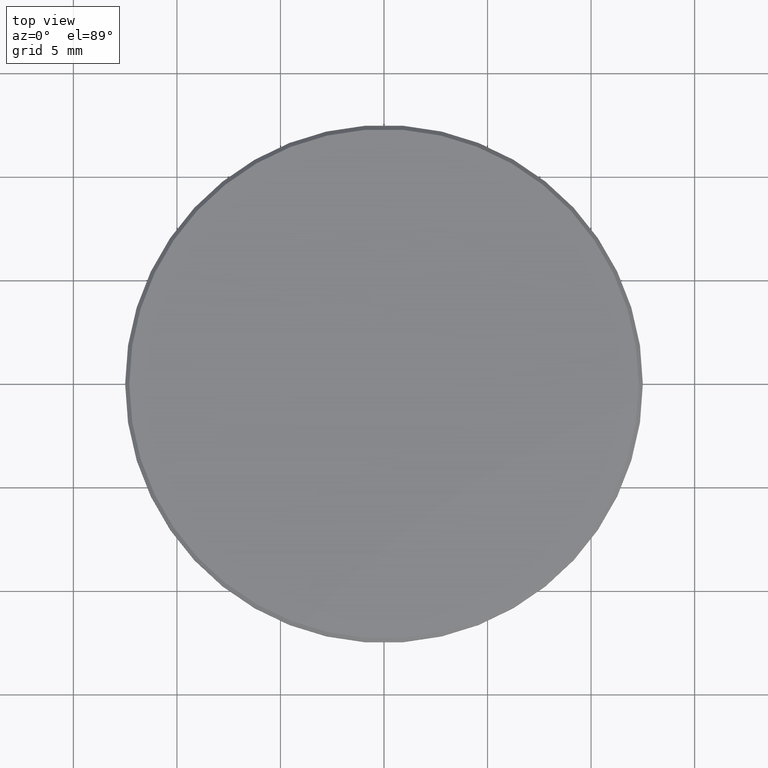
[diagram: clean part render]
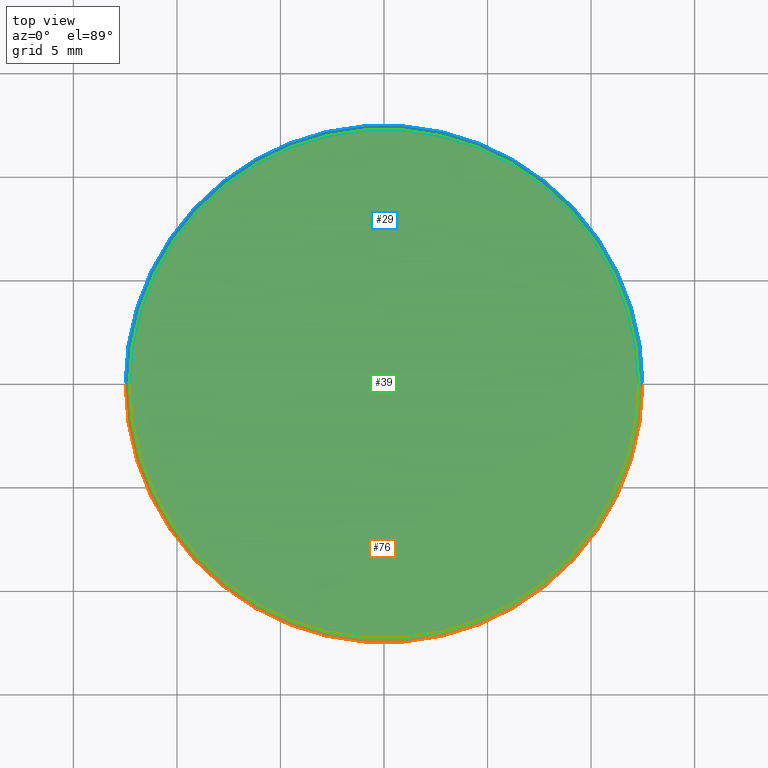
[diagram: same view with three faces highlighted in distinct colors, each labeled with its STEP entity id]
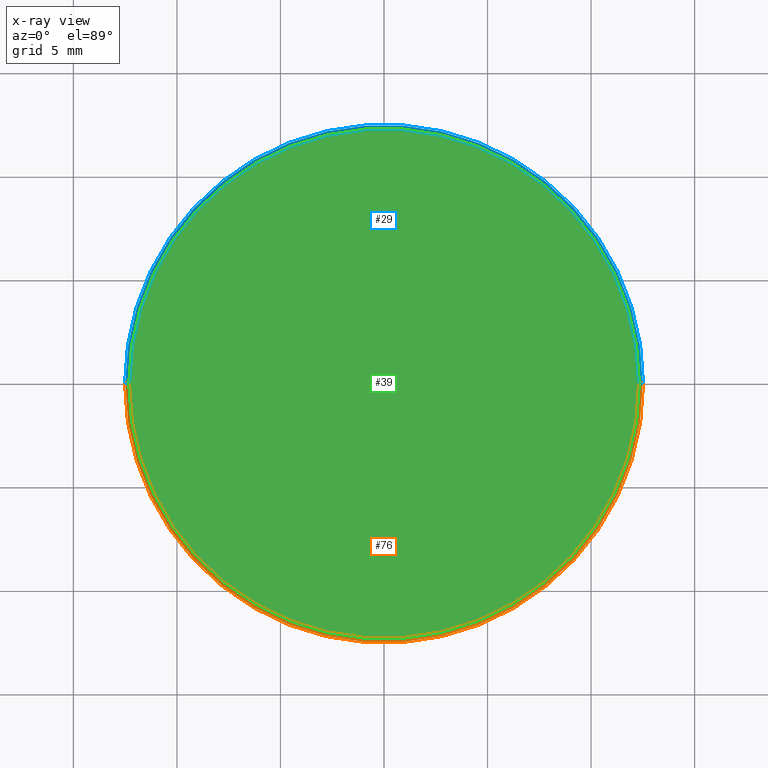
[diagram: x-ray of the same camera — body ghosted, the three highlighted faces saturated]
A machine part, top view with three faces highlighted in distinct colors.
The next image is the same camera in x-ray (body ghosted, the three faces saturated) — at least one of them is partly hidden behind the body in this view.
Their STEP definitions:

[orange] entity #76 — the highlighted conical surface has half-angle 45 deg.
#1 = FACE_OUTER_BOUND ( 'NONE', #153, .T. ) ;
#2 = ORIENTED_EDGE ( 'NONE', *, *, #102, .F. ) ;
#21 = LINE ( 'NONE', #222, #90 ) ;
#27 = CARTESIAN_POINT ( 'NONE',  ( 12.29999999999999893, 1.506315562951244216E-15, 1.000000000000000000 ) ) ;
#34 = AXIS2_PLACEMENT_3D ( 'NONE', #137, #84, #149 ) ;
#36 = CIRCLE ( 'NONE', #73, 12.29999999999999893 ) ;
#40 = VERTEX_POINT ( 'NONE', #138 ) ;
#49 = CARTESIAN_POINT ( 'NONE',  ( 0.000000000000000000, 0.000000000000000000, 0.8000000000000029310 ) ) ;
#50 = EDGE_CURVE ( 'NONE', #191, #105, #21, .T. ) ;
#57 = AXIS2_PLACEMENT_3D ( 'NONE', #49, #180, #197 ) ;
#73 = AXIS2_PLACEMENT_3D ( 'NONE', #107, #127, #196 ) ;
#76 = ADVANCED_FACE ( 'NONE', ( #1 ), #139, .T. ) ;
#79 = VERTEX_POINT ( 'NONE', #209 ) ;
#84 = DIRECTION ( 'NONE',  ( 0.000000000000000000, 0.000000000000000000, -1.000000000000000000 ) ) ;
#86 = ORIENTED_EDGE ( 'NONE', *, *, #50, .T. ) ;
#89 = CARTESIAN_POINT ( 'NONE',  ( -12.29999999999999893, 0.000000000000000000, 1.000000000000000000 ) ) ;
#90 = VECTOR ( 'NONE', #173, 1000.000000000000000 ) ;
#102 = EDGE_CURVE ( 'NONE', #191, #40, #36, .T. ) ;
#105 = VERTEX_POINT ( 'NONE', #229 ) ;
#107 = CARTESIAN_POINT ( 'NONE',  ( 0.000000000000000000, 0.000000000000000000, 1.000000000000000000 ) ) ;
#112 = CIRCLE ( 'NONE', #57, 12.50000000000000000 ) ;
#123 = VECTOR ( 'NONE', #157, 1000.000000000000000 ) ;
#127 = DIRECTION ( 'NONE',  ( 0.000000000000000000, 0.000000000000000000, 1.000000000000000000 ) ) ;
#137 = CARTESIAN_POINT ( 'NONE',  ( 0.000000000000000000, 0.000000000000000000, 1.000000000000000000 ) ) ;
#138 = CARTESIAN_POINT ( 'NONE',  ( 12.29999999999999893, 1.518562030942717967E-15, 1.000000000000000000 ) ) ;
#139 = CONICAL_SURFACE ( 'NONE', #34, 12.29999999999999893, 0.7853981633974612686 ) ;
#149 = DIRECTION ( 'NONE',  ( -1.000000000000000000, 0.000000000000000000, 0.000000000000000000 ) ) ;
#150 = EDGE_CURVE ( 'NONE', #79, #105, #112, .T. ) ;
#153 = EDGE_LOOP ( 'NONE', ( #220, #2, #86, #190 ) ) ;
#155 = LINE ( 'NONE', #27, #123 ) ;
#157 = DIRECTION ( 'NONE',  ( 0.7071067811865566766, 8.659560562355045024E-17, -0.7071067811865383579 ) ) ;
#173 = DIRECTION ( 'NONE',  ( -0.7071067811865566766, 0.000000000000000000, -0.7071067811865383579 ) ) ;
#180 = DIRECTION ( 'NONE',  ( 0.000000000000000000, 0.000000000000000000, -1.000000000000000000 ) ) ;
#190 = ORIENTED_EDGE ( 'NONE', *, *, #150, .F. ) ;
#191 = VERTEX_POINT ( 'NONE', #89 ) ;
#196 = DIRECTION ( 'NONE',  ( 1.000000000000000000, 0.000000000000000000, 0.000000000000000000 ) ) ;
#197 = DIRECTION ( 'NONE',  ( 1.000000000000000000, 0.000000000000000000, 0.000000000000000000 ) ) ;
#204 = EDGE_CURVE ( 'NONE', #40, #79, #155, .T. ) ;
#209 = CARTESIAN_POINT ( 'NONE',  ( 12.50000000000000000, 1.530808498934191521E-15, 0.8000000000000029310 ) ) ;
#220 = ORIENTED_EDGE ( 'NONE', *, *, #204, .F. ) ;
#222 = CARTESIAN_POINT ( 'NONE',  ( -12.29999999999999893, 0.000000000000000000, 1.000000000000000000 ) ) ;
#229 = CARTESIAN_POINT ( 'NONE',  ( -12.50000000000000000, 0.000000000000000000, 0.8000000000000029310 ) ) ;

[blue] entity #29 — the highlighted conical surface has half-angle 45 deg.
#6 = CARTESIAN_POINT ( 'NONE',  ( 0.000000000000000000, 0.000000000000000000, 0.8000000000000029310 ) ) ;
#21 = LINE ( 'NONE', #222, #90 ) ;
#27 = CARTESIAN_POINT ( 'NONE',  ( 12.29999999999999893, 1.506315562951244216E-15, 1.000000000000000000 ) ) ;
#29 = ADVANCED_FACE ( 'NONE', ( #193 ), #184, .T. ) ;
#40 = VERTEX_POINT ( 'NONE', #138 ) ;
#50 = EDGE_CURVE ( 'NONE', #191, #105, #21, .T. ) ;
#54 = EDGE_CURVE ( 'NONE', #105, #79, #234, .T. ) ;
#56 = ORIENTED_EDGE ( 'NONE', *, *, #142, .F. ) ;
#79 = VERTEX_POINT ( 'NONE', #209 ) ;
#81 = CIRCLE ( 'NONE', #232, 12.29999999999999893 ) ;
#87 = DIRECTION ( 'NONE',  ( 0.000000000000000000, 0.000000000000000000, -1.000000000000000000 ) ) ;
#89 = CARTESIAN_POINT ( 'NONE',  ( -12.29999999999999893, 0.000000000000000000, 1.000000000000000000 ) ) ;
#90 = VECTOR ( 'NONE', #173, 1000.000000000000000 ) ;
#99 = DIRECTION ( 'NONE',  ( 0.000000000000000000, 0.000000000000000000, -1.000000000000000000 ) ) ;
#105 = VERTEX_POINT ( 'NONE', #229 ) ;
#111 = DIRECTION ( 'NONE',  ( 0.000000000000000000, 0.000000000000000000, 1.000000000000000000 ) ) ;
#117 = EDGE_LOOP ( 'NONE', ( #56, #203, #219, #146 ) ) ;
#123 = VECTOR ( 'NONE', #157, 1000.000000000000000 ) ;
#138 = CARTESIAN_POINT ( 'NONE',  ( 12.29999999999999893, 1.518562030942717967E-15, 1.000000000000000000 ) ) ;
#142 = EDGE_CURVE ( 'NONE', #40, #191, #81, .T. ) ;
#146 = ORIENTED_EDGE ( 'NONE', *, *, #50, .F. ) ;
#152 = DIRECTION ( 'NONE',  ( -1.000000000000000000, 0.000000000000000000, 0.000000000000000000 ) ) ;
#155 = LINE ( 'NONE', #27, #123 ) ;
#157 = DIRECTION ( 'NONE',  ( 0.7071067811865566766, 8.659560562355045024E-17, -0.7071067811865383579 ) ) ;
#172 = AXIS2_PLACEMENT_3D ( 'NONE', #205, #87, #152 ) ;
#173 = DIRECTION ( 'NONE',  ( -0.7071067811865566766, 0.000000000000000000, -0.7071067811865383579 ) ) ;
#184 = CONICAL_SURFACE ( 'NONE', #172, 12.29999999999999893, 0.7853981633974612686 ) ;
#191 = VERTEX_POINT ( 'NONE', #89 ) ;
#193 = FACE_OUTER_BOUND ( 'NONE', #117, .T. ) ;
#202 = AXIS2_PLACEMENT_3D ( 'NONE', #6, #99, #226 ) ;
#203 = ORIENTED_EDGE ( 'NONE', *, *, #204, .T. ) ;
#204 = EDGE_CURVE ( 'NONE', #40, #79, #155, .T. ) ;
#205 = CARTESIAN_POINT ( 'NONE',  ( 0.000000000000000000, 0.000000000000000000, 1.000000000000000000 ) ) ;
#209 = CARTESIAN_POINT ( 'NONE',  ( 12.50000000000000000, 1.530808498934191521E-15, 0.8000000000000029310 ) ) ;
#212 = CARTESIAN_POINT ( 'NONE',  ( 0.000000000000000000, 0.000000000000000000, 1.000000000000000000 ) ) ;
#219 = ORIENTED_EDGE ( 'NONE', *, *, #54, .F. ) ;
#222 = CARTESIAN_POINT ( 'NONE',  ( -12.29999999999999893, 0.000000000000000000, 1.000000000000000000 ) ) ;
#226 = DIRECTION ( 'NONE',  ( 1.000000000000000000, 0.000000000000000000, 0.000000000000000000 ) ) ;
#229 = CARTESIAN_POINT ( 'NONE',  ( -12.50000000000000000, 0.000000000000000000, 0.8000000000000029310 ) ) ;
#232 = AXIS2_PLACEMENT_3D ( 'NONE', #212, #111, #233 ) ;
#233 = DIRECTION ( 'NONE',  ( 1.000000000000000000, 0.000000000000000000, 0.000000000000000000 ) ) ;
#234 = CIRCLE ( 'NONE', #202, 12.50000000000000000 ) ;

[green] entity #39 — the highlighted planar face has unit normal (0, 0, 1).
#36 = CIRCLE ( 'NONE', #73, 12.29999999999999893 ) ;
#38 = EDGE_LOOP ( 'NONE', ( #41, #135 ) ) ;
#39 = ADVANCED_FACE ( 'NONE', ( #103 ), #154, .T. ) ;
#40 = VERTEX_POINT ( 'NONE', #138 ) ;
#41 = ORIENTED_EDGE ( 'NONE', *, *, #102, .T. ) ;
#73 = AXIS2_PLACEMENT_3D ( 'NONE', #107, #127, #196 ) ;
#81 = CIRCLE ( 'NONE', #232, 12.29999999999999893 ) ;
#85 = DIRECTION ( 'NONE',  ( 0.000000000000000000, 0.000000000000000000, 1.000000000000000000 ) ) ;
#89 = CARTESIAN_POINT ( 'NONE',  ( -12.29999999999999893, 0.000000000000000000, 1.000000000000000000 ) ) ;
#102 = EDGE_CURVE ( 'NONE', #191, #40, #36, .T. ) ;
#103 = FACE_OUTER_BOUND ( 'NONE', #38, .T. ) ;
#107 = CARTESIAN_POINT ( 'NONE',  ( 0.000000000000000000, 0.000000000000000000, 1.000000000000000000 ) ) ;
#111 = DIRECTION ( 'NONE',  ( 0.000000000000000000, 0.000000000000000000, 1.000000000000000000 ) ) ;
#127 = DIRECTION ( 'NONE',  ( 0.000000000000000000, 0.000000000000000000, 1.000000000000000000 ) ) ;
#135 = ORIENTED_EDGE ( 'NONE', *, *, #142, .T. ) ;
#138 = CARTESIAN_POINT ( 'NONE',  ( 12.29999999999999893, 1.518562030942717967E-15, 1.000000000000000000 ) ) ;
#142 = EDGE_CURVE ( 'NONE', #40, #191, #81, .T. ) ;
#154 = PLANE ( 'NONE',  #216 ) ;
#191 = VERTEX_POINT ( 'NONE', #89 ) ;
#196 = DIRECTION ( 'NONE',  ( 1.000000000000000000, 0.000000000000000000, 0.000000000000000000 ) ) ;
#212 = CARTESIAN_POINT ( 'NONE',  ( 0.000000000000000000, 0.000000000000000000, 1.000000000000000000 ) ) ;
#216 = AXIS2_PLACEMENT_3D ( 'NONE', #227, #85, #223 ) ;
#223 = DIRECTION ( 'NONE',  ( 1.000000000000000000, 0.000000000000000000, -0.000000000000000000 ) ) ;
#227 = CARTESIAN_POINT ( 'NONE',  ( 0.000000000000000000, 0.000000000000000000, 1.000000000000000000 ) ) ;
#232 = AXIS2_PLACEMENT_3D ( 'NONE', #212, #111, #233 ) ;
#233 = DIRECTION ( 'NONE',  ( 1.000000000000000000, 0.000000000000000000, 0.000000000000000000 ) ) ;